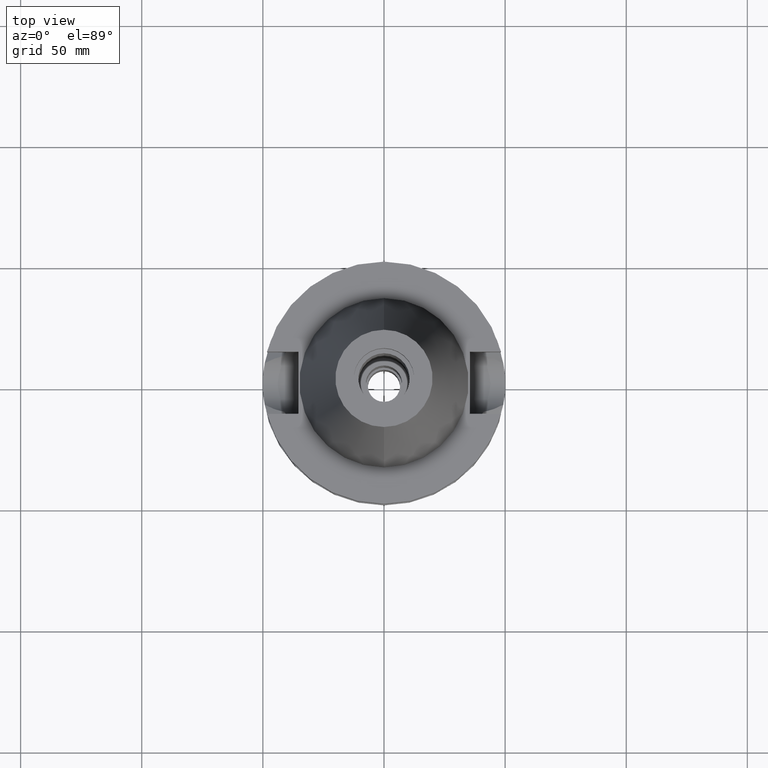
[diagram: clean part render]
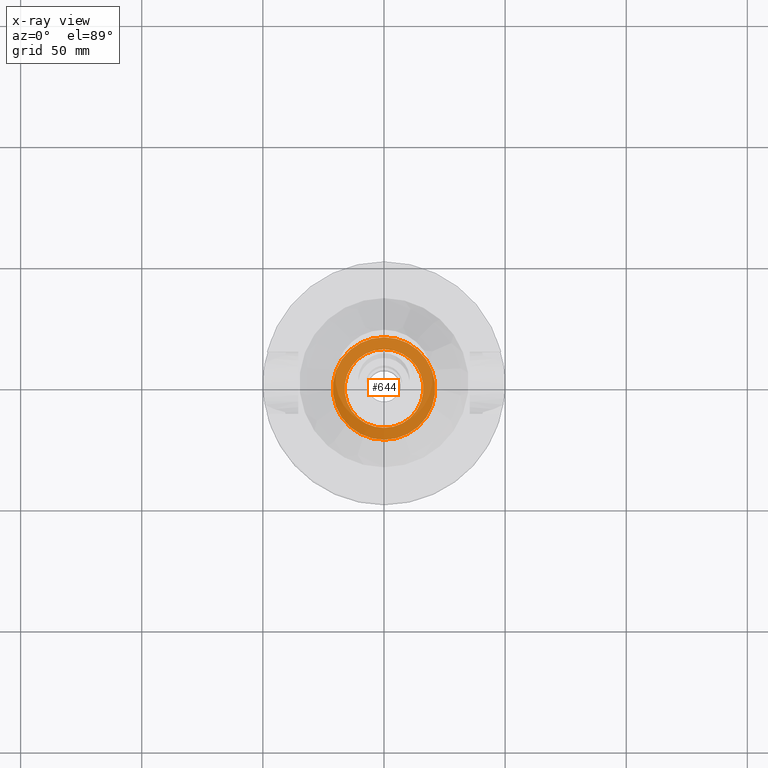
[diagram: x-ray — body ghosted, one internal face saturated and labeled with its STEP entity id]
A machine part, top view, then the same camera in x-ray: the body is ghosted and one INTERNAL B-rep face — a face not visible from any outside direction — is saturated and labeled: STEP entity #644.
In plain terms, the highlighted planar face has unit normal (0, 0, -1).
Its self-contained STEP definition (entity closure, byte-faithful):
#119 = EDGE_CURVE ( 'NONE', #385, #604, #2716, .T. ) ;
#155 = CARTESIAN_POINT ( 'NONE',  ( 0.0000000000000000000, -16.25000000000000000, 0.0000000000000000000 ) ) ;
#385 = VERTEX_POINT ( 'NONE', #606 ) ;
#411 = ORIENTED_EDGE ( 'NONE', *, *, #119, .F. ) ;
#423 = DIRECTION ( 'NONE',  ( 0.0000000000000000000, -1.000000000000000000, 0.0000000000000000000 ) ) ;
#515 = CIRCLE ( 'NONE', #3002, 16.25000000000000000 ) ;
#602 = EDGE_CURVE ( 'NONE', #1721, #2758, #2969, .T. ) ;
#604 = VERTEX_POINT ( 'NONE', #942 ) ;
#606 = CARTESIAN_POINT ( 'NONE',  ( 0.0000000000000000000, 21.14999999999999858, 0.0000000000000000000 ) ) ;
#644 = ADVANCED_FACE ( 'NONE', ( #2159, #656 ), #1653, .F. ) ;
#656 = FACE_BOUND ( 'NONE', #1096, .T. ) ;
#683 = DIRECTION ( 'NONE',  ( 0.0000000000000000000, 0.0000000000000000000, 1.000000000000000000 ) ) ;
#795 = AXIS2_PLACEMENT_3D ( 'NONE', #1146, #683, #2402 ) ;
#885 = DIRECTION ( 'NONE',  ( 0.0000000000000000000, 0.0000000000000000000, -1.000000000000000000 ) ) ;
#902 = AXIS2_PLACEMENT_3D ( 'NONE', #1201, #1220, #2225 ) ;
#942 = CARTESIAN_POINT ( 'NONE',  ( 0.0000000000000000000, -21.14999999999999858, 0.0000000000000000000 ) ) ;
#1096 = EDGE_LOOP ( 'NONE', ( #2005, #1566 ) ) ;
#1136 = ORIENTED_EDGE ( 'NONE', *, *, #2731, .F. ) ;
#1146 = CARTESIAN_POINT ( 'NONE',  ( 0.0000000000000000000, 0.0000000000000000000, 0.0000000000000000000 ) ) ;
#1166 = CARTESIAN_POINT ( 'NONE',  ( 0.0000000000000000000, 0.0000000000000000000, 0.0000000000000000000 ) ) ;
#1201 = CARTESIAN_POINT ( 'NONE',  ( 0.0000000000000000000, 0.0000000000000000000, 0.0000000000000000000 ) ) ;
#1220 = DIRECTION ( 'NONE',  ( 0.0000000000000000000, 0.0000000000000000000, -1.000000000000000000 ) ) ;
#1372 = DIRECTION ( 'NONE',  ( 0.0000000000000000000, 0.0000000000000000000, 1.000000000000000000 ) ) ;
#1381 = CARTESIAN_POINT ( 'NONE',  ( 0.0000000000000000000, 0.0000000000000000000, 0.0000000000000000000 ) ) ;
#1412 = CARTESIAN_POINT ( 'NONE',  ( 0.0000000000000000000, 0.0000000000000000000, 0.0000000000000000000 ) ) ;
#1509 = EDGE_LOOP ( 'NONE', ( #411, #1136 ) ) ;
#1566 = ORIENTED_EDGE ( 'NONE', *, *, #1796, .F. ) ;
#1653 = PLANE ( 'NONE',  #2829 ) ;
#1721 = VERTEX_POINT ( 'NONE', #2119 ) ;
#1796 = EDGE_CURVE ( 'NONE', #2758, #1721, #515, .T. ) ;
#2005 = ORIENTED_EDGE ( 'NONE', *, *, #602, .F. ) ;
#2119 = CARTESIAN_POINT ( 'NONE',  ( 0.0000000000000000000, 16.25000000000000000, 0.0000000000000000000 ) ) ;
#2159 = FACE_OUTER_BOUND ( 'NONE', #1509, .T. ) ;
#2205 = DIRECTION ( 'NONE',  ( 0.0000000000000000000, 0.0000000000000000000, -1.000000000000000000 ) ) ;
#2225 = DIRECTION ( 'NONE',  ( 0.0000000000000000000, 1.000000000000000000, 0.0000000000000000000 ) ) ;
#2251 = AXIS2_PLACEMENT_3D ( 'NONE', #1381, #885, #2360 ) ;
#2305 = CIRCLE ( 'NONE', #2251, 21.14999999999999858 ) ;
#2360 = DIRECTION ( 'NONE',  ( 0.0000000000000000000, -1.000000000000000000, 0.0000000000000000000 ) ) ;
#2402 = DIRECTION ( 'NONE',  ( 0.0000000000000000000, 1.000000000000000000, 0.0000000000000000000 ) ) ;
#2694 = DIRECTION ( 'NONE',  ( 0.0000000000000000000, -1.000000000000000000, 0.0000000000000000000 ) ) ;
#2716 = CIRCLE ( 'NONE', #902, 21.14999999999999858 ) ;
#2731 = EDGE_CURVE ( 'NONE', #604, #385, #2305, .T. ) ;
#2758 = VERTEX_POINT ( 'NONE', #155 ) ;
#2829 = AXIS2_PLACEMENT_3D ( 'NONE', #1166, #2205, #2694 ) ;
#2969 = CIRCLE ( 'NONE', #795, 16.25000000000000000 ) ;
#3002 = AXIS2_PLACEMENT_3D ( 'NONE', #1412, #1372, #423 ) ;